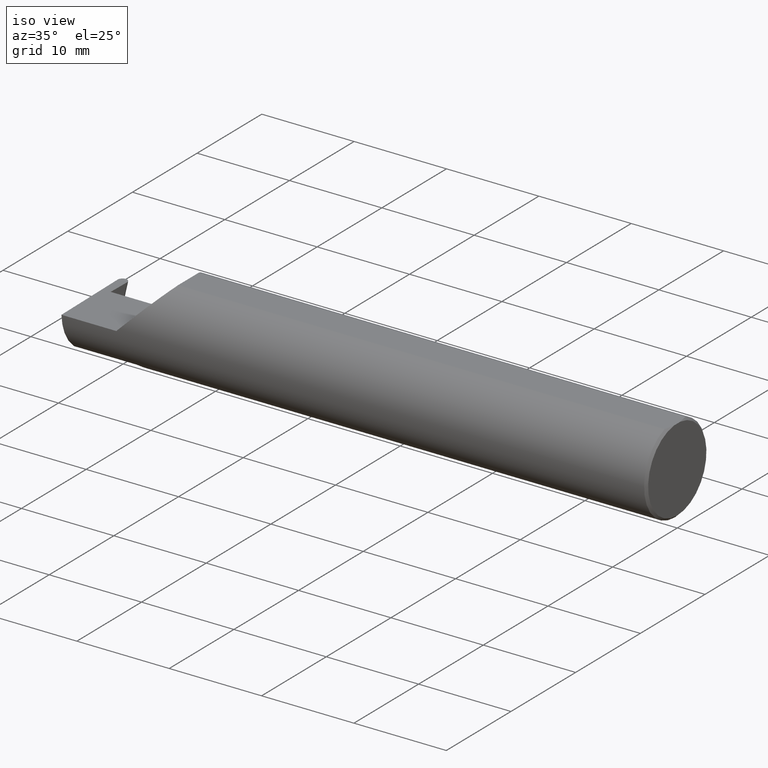
[diagram: clean part render]
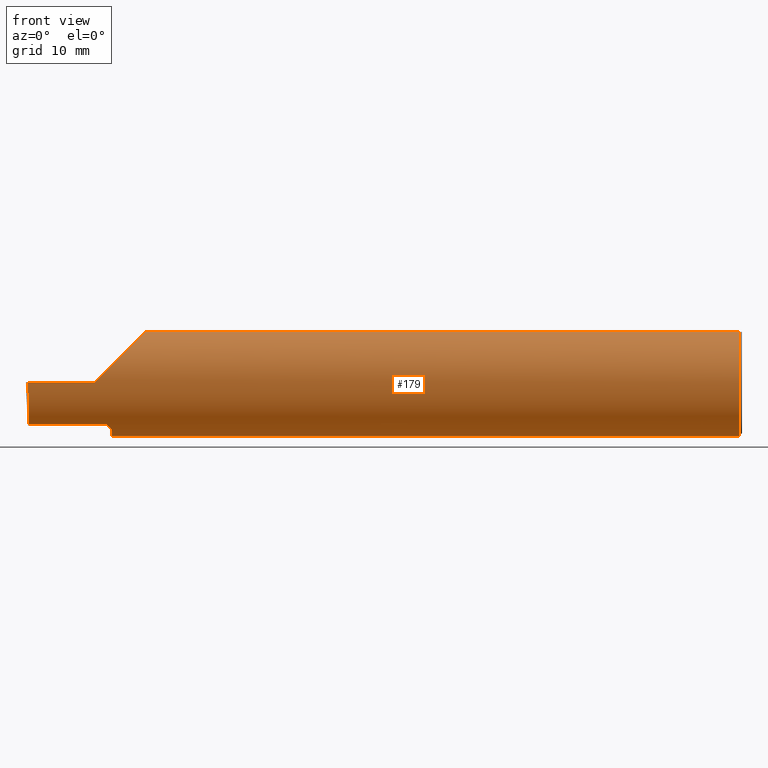
[diagram: tour spotlight — one face highlighted and labeled with its STEP entity id]
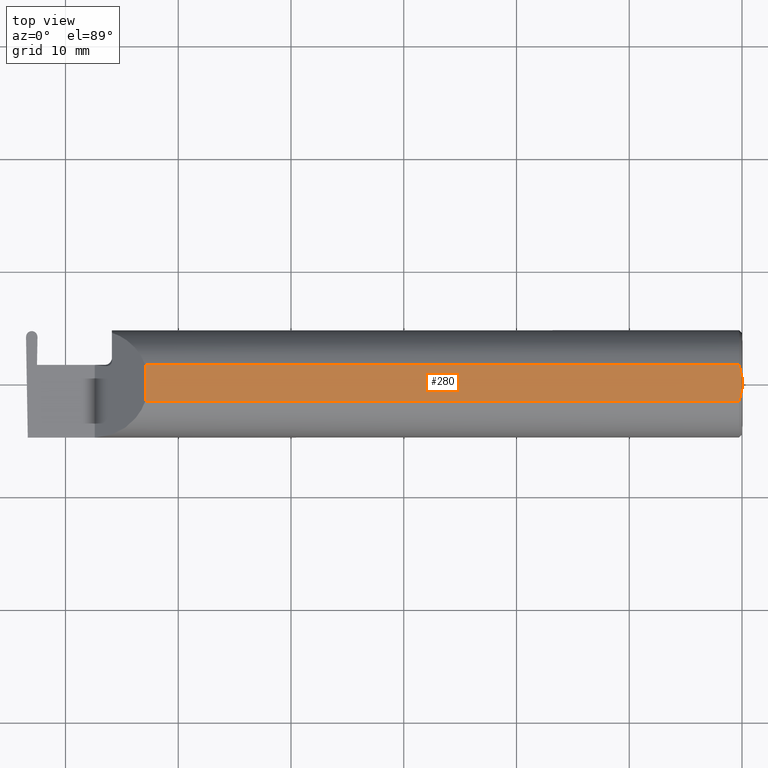
[diagram: tour spotlight — one face highlighted and labeled with its STEP entity id]
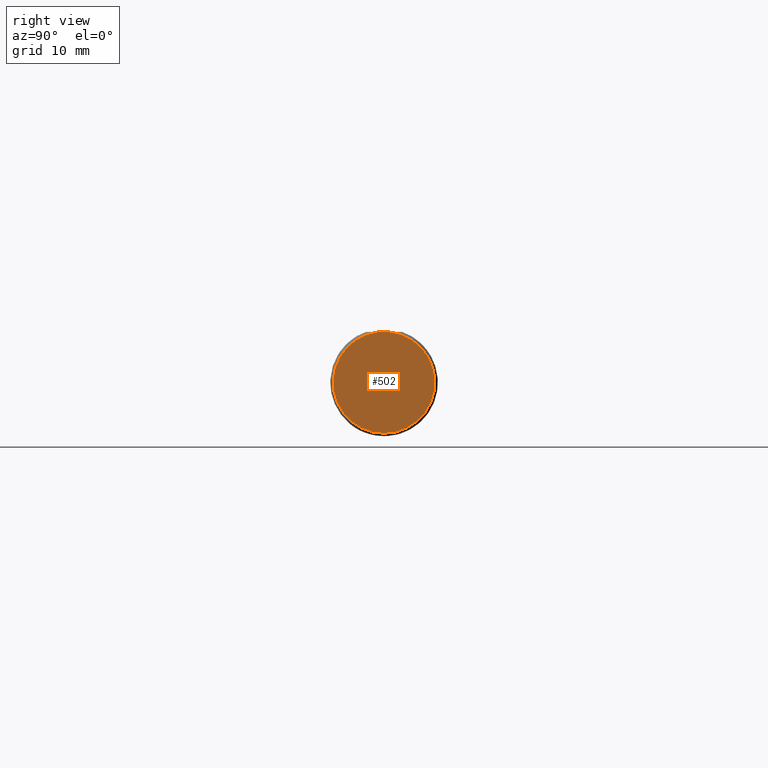
[diagram: tour spotlight — one face highlighted and labeled with its STEP entity id]
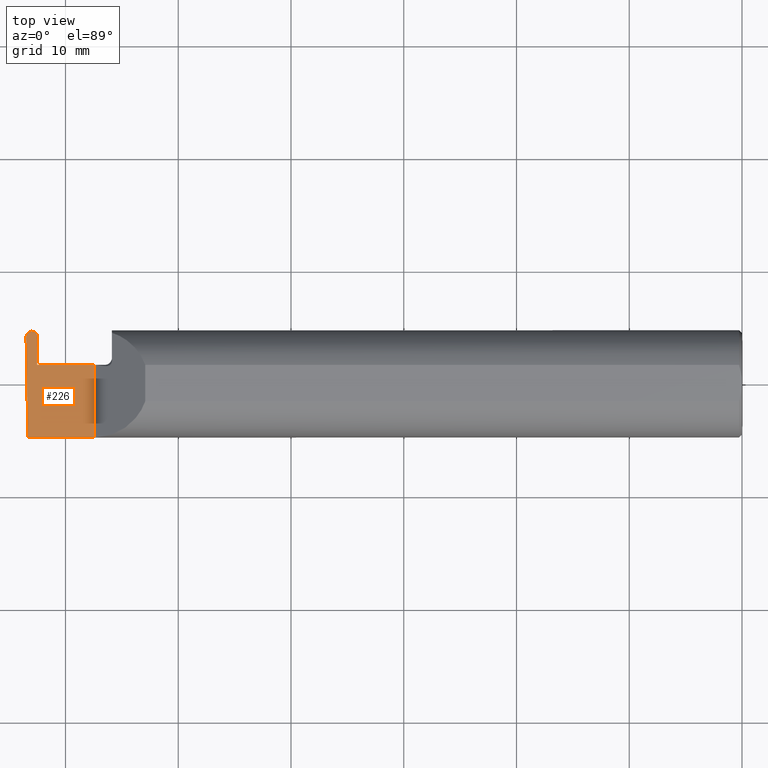
[diagram: tour spotlight — one face highlighted and labeled with its STEP entity id]
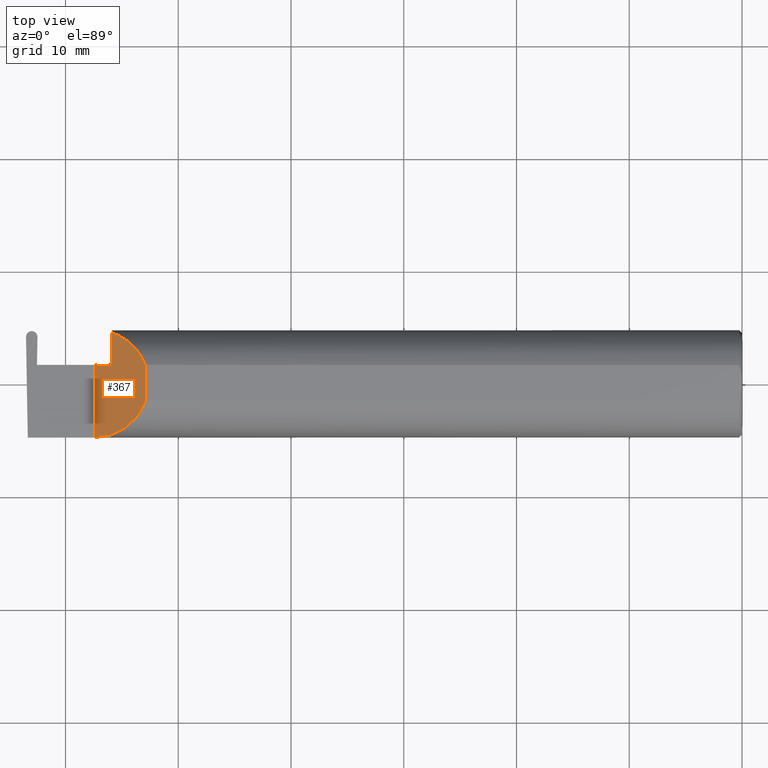
[diagram: tour spotlight — one face highlighted and labeled with its STEP entity id]
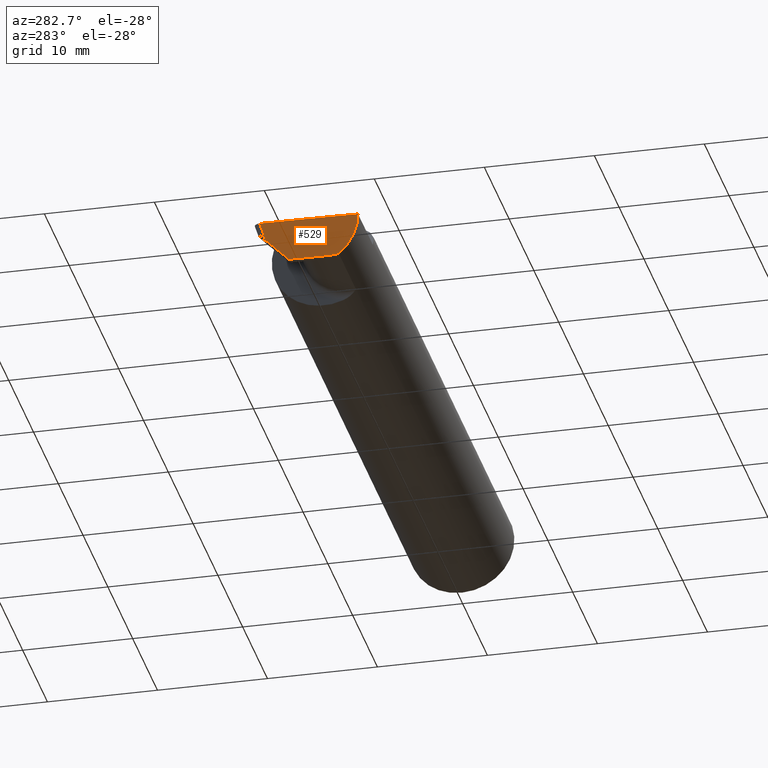
[diagram: tour spotlight — one face highlighted and labeled with its STEP entity id]
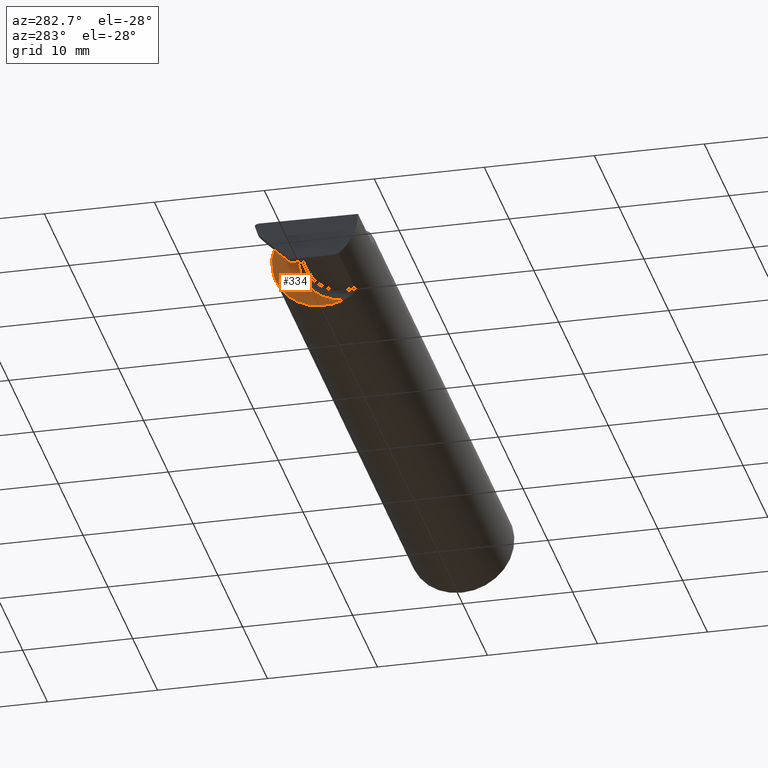
[diagram: tour spotlight — one face highlighted and labeled with its STEP entity id]
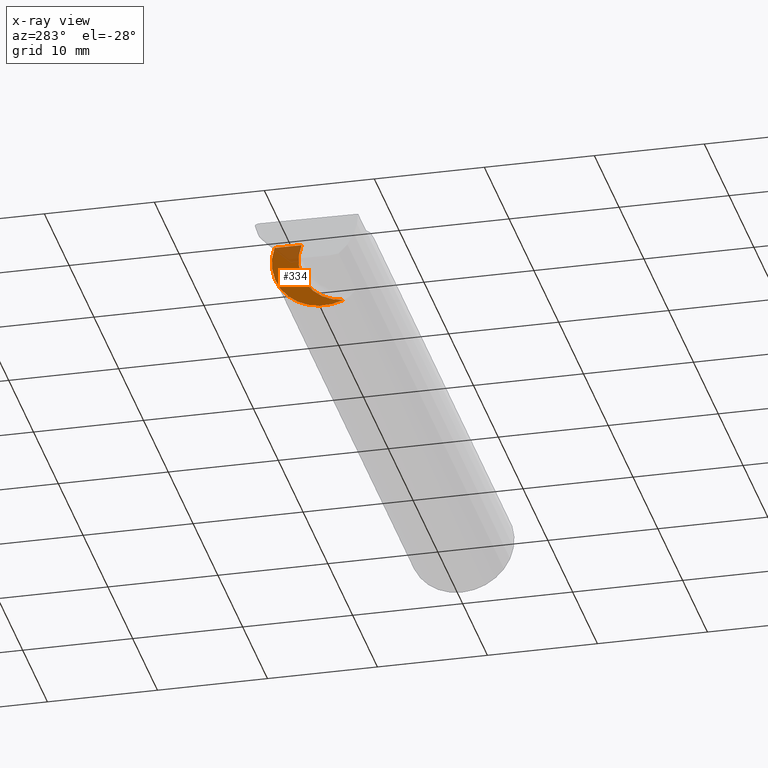
[diagram: x-ray of the same camera — body ghosted, this tour face saturated]
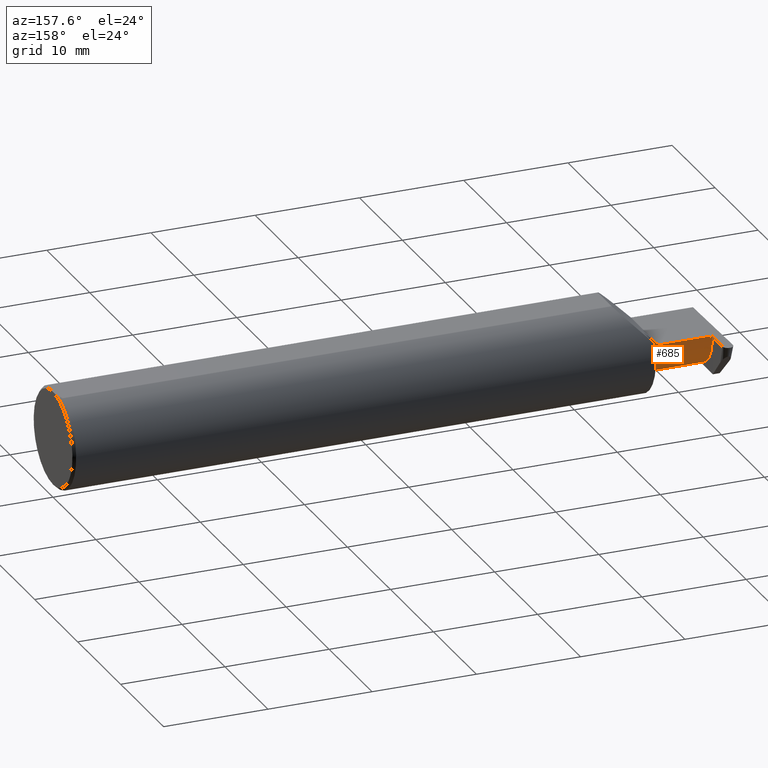
[diagram: tour spotlight — one face highlighted and labeled with its STEP entity id]
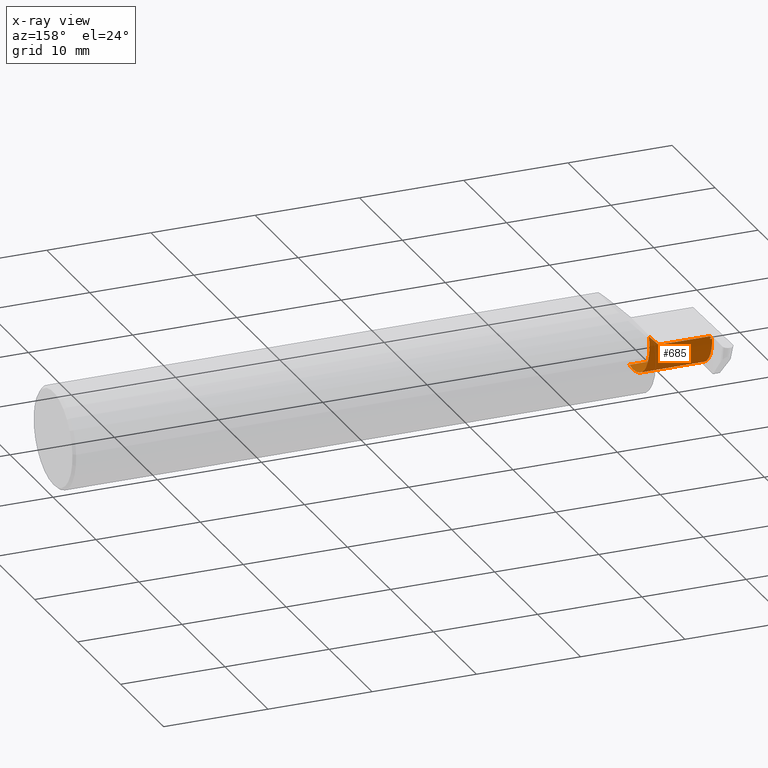
[diagram: x-ray of the same camera — body ghosted, this tour face saturated]
A machine part: a face-by-face anatomy tour. The part has 19 B-rep faces; the first image is the clean iso view, then the 8 largest visible faces are spotlighted one at a time (largest first), each with its STEP entity span.

Face 1 — front view, entity #179. In plain terms, the highlighted cylindrical surface (partial cylindrical patch) has radius 4.7625 mm, axis along (1, -0, -0).
Definition (entity closure, byte-faithful):
#8 = CARTESIAN_POINT ( 'NONE',  ( 0.000000000000000000, -0.06327716807822586498, 0.1764999999999998792 ) ) ;
#12 = CARTESIAN_POINT ( 'NONE',  ( 0.000000000000000000, 0.000000000000000000, 0.000000000000000000 ) ) ;
#16 = VERTEX_POINT ( 'NONE', #329 ) ;
#19 = VECTOR ( 'NONE', #240, 39.37007874015748143 ) ;
#30 = CIRCLE ( 'NONE', #126, 0.1875000000000000278 ) ;
#38 = ORIENTED_EDGE ( 'NONE', *, *, #87, .F. ) ;
#40 = ORIENTED_EDGE ( 'NONE', *, *, #559, .F. ) ;
#41 = EDGE_CURVE ( 'NONE', #16, #632, #493, .T. ) ;
#48 = CARTESIAN_POINT ( 'NONE',  ( -2.200000000000000178, 0.1776407892349053386, 0.05999999999999953981 ) ) ;
#83 = VERTEX_POINT ( 'NONE', #600 ) ;
#84 = LINE ( 'NONE', #675, #535 ) ;
#86 = ORIENTED_EDGE ( 'NONE', *, *, #149, .T. ) ;
#87 = EDGE_CURVE ( 'NONE', #271, #632, #147, .T. ) ;
#102 = VERTEX_POINT ( 'NONE', #655 ) ;
#124 = CARTESIAN_POINT ( 'NONE',  ( -2.200000000000000178, -0.07403853252698160137, -0.1723521670158846830 ) ) ;
#126 = AXIS2_PLACEMENT_3D ( 'NONE', #344, #526, #678 ) ;
#129 = LINE ( 'NONE', #657, #466 ) ;
#134 = CARTESIAN_POINT ( 'NONE',  ( -2.213208340743105129, -0.1123268376040813116, -0.1501472573737382687 ) ) ;
#139 = VECTOR ( 'NONE', #198, 39.37007874015748143 ) ;
#147 =( BOUNDED_CURVE ( )  B_SPLINE_CURVE ( 3, ( #538, #279, #491, #48 ),
 .UNSPECIFIED., .F., .T. ) 
 B_SPLINE_CURVE_WITH_KNOTS ( ( 4, 4 ),
 ( 0.3442366722172838234, 1.245066839500269085 ),
 .UNSPECIFIED. ) 
 CURVE ( )  GEOMETRIC_REPRESENTATION_ITEM ( )  RATIONAL_B_SPLINE_CURVE ( ( 1.000000000000000000, 0.9335109851393532665, 0.9335109851393532665, 1.000000000000000000 ) ) 
 REPRESENTATION_ITEM ( '' )  );
#149 = EDGE_CURVE ( 'NONE', #362, #422, #298, .T. ) ;
#165 = CARTESIAN_POINT ( 'NONE',  ( -2.491841469758325989, -0.1875000000000000555, -0.05777037557894454389 ) ) ;
#177 = CARTESIAN_POINT ( 'NONE',  ( -2.206307565795738501, -0.1025298007101598380, -0.1570730641124816751 ) ) ;
#179 = ADVANCED_FACE ( 'NONE', ( #665 ), #516, .T. ) ;
#193 = EDGE_LOOP ( 'NONE', ( #223, #203, #245, #38, #507, #230, #352, #86, #626, #40, #211 ) ) ;
#198 = DIRECTION ( 'NONE',  ( 1.000000000000000000, -4.597460811137283626E-16, -0.000000000000000000 ) ) ;
#203 = ORIENTED_EDGE ( 'NONE', *, *, #235, .T. ) ;
#211 = ORIENTED_EDGE ( 'NONE', *, *, #475, .F. ) ;
#223 = ORIENTED_EDGE ( 'NONE', *, *, #303, .T. ) ;
#227 = DIRECTION ( 'NONE',  ( 0.000000000000000000, 0.000000000000000000, -1.000000000000000000 ) ) ;
#230 = ORIENTED_EDGE ( 'NONE', *, *, #625, .F. ) ;
#235 = EDGE_CURVE ( 'NONE', #241, #16, #558, .T. ) ;
#240 = DIRECTION ( 'NONE',  ( -1.000000000000000000, 0.000000000000000000, 0.000000000000000000 ) ) ;
#241 = VERTEX_POINT ( 'NONE', #509 ) ;
#245 = ORIENTED_EDGE ( 'NONE', *, *, #41, .T. ) ;
#249 = CARTESIAN_POINT ( 'NONE',  ( -2.083499999999998575, -0.06327716807822589273, 0.1764999999999998792 ) ) ;
#261 = CARTESIAN_POINT ( 'NONE',  ( -2.342483000000000093, -0.1175359281437123732, -0.1460874929465081906 ) ) ;
#267 =( BOUNDED_CURVE ( )  B_SPLINE_CURVE ( 3, ( #585, #693, #638, #249 ),
 .UNSPECIFIED., .F., .F. ) 
 B_SPLINE_CURVE_WITH_KNOTS ( ( 4, 4 ),
 ( 4.712388980384689674, 5.938948634962302187 ),
 .UNSPECIFIED. ) 
 CURVE ( )  GEOMETRIC_REPRESENTATION_ITEM ( )  RATIONAL_B_SPLINE_CURVE ( ( 1.000000000000000000, 0.8785098042021781684, 0.8785098042021781684, 1.000000000000000000 ) ) 
 REPRESENTATION_ITEM ( '' )  );
#271 = VERTEX_POINT ( 'NONE', #572 ) ;
#279 = CARTESIAN_POINT ( 'NONE',  ( -2.103172709306314836, 0.1181505655139686445, 0.1568272906936838129 ) ) ;
#281 = CARTESIAN_POINT ( 'NONE',  ( -2.489978125682272392, -0.1175359281437123038, -0.1460874929465081906 ) ) ;
#287 = CARTESIAN_POINT ( 'NONE',  ( -2.225000000000000089, -0.1175359281437121373, -0.1460874929465083294 ) ) ;
#298 = LINE ( 'NONE', #8, #19 ) ;
#303 = EDGE_CURVE ( 'NONE', #564, #241, #305, .T. ) ;
#305 = LINE ( 'NONE', #261, #139 ) ;
#309 = EDGE_CURVE ( 'NONE', #396, #422, #267, .T. ) ;
#329 = CARTESIAN_POINT ( 'NONE',  ( -2.200000000000000178, -0.06888323353293394902, -0.1743885034572155990 ) ) ;
#339 = DIRECTION ( 'NONE',  ( 0.000000000000000000, 0.000000000000000000, 1.000000000000000000 ) ) ;
#344 = CARTESIAN_POINT ( 'NONE',  ( -0.009999999999999927350, 0.000000000000000000, 0.000000000000000000 ) ) ;
#346 = CARTESIAN_POINT ( 'NONE',  ( -2.200000000000000178, -0.06888323353293394902, -0.1743885034572155990 ) ) ;
#350 = DIRECTION ( 'NONE',  ( 1.000000000000000000, -0.000000000000000000, -0.000000000000000000 ) ) ;
#352 = ORIENTED_EDGE ( 'NONE', *, *, #550, .F. ) ;
#354 = CARTESIAN_POINT ( 'NONE',  ( -2.202962159819173760, -0.09349862836945414812, -0.1626109282809109491 ) ) ;
#362 = VERTEX_POINT ( 'NONE', #410 ) ;
#378 = CARTESIAN_POINT ( 'NONE',  ( -2.260000000000000231, -0.1874999999999999722, 2.939152317953647352E-17 ) ) ;
#396 = VERTEX_POINT ( 'NONE', #378 ) ;
#398 = CARTESIAN_POINT ( 'NONE',  ( -2.201844959670647750, -0.08880246195917441965, -0.1652268154298246750 ) ) ;
#410 = CARTESIAN_POINT ( 'NONE',  ( -0.009999999999999927350, -0.06327716807822586498, 0.1764999999999998792 ) ) ;
#417 = DIRECTION ( 'NONE',  ( 1.000000000000000000, -0.000000000000000000, -0.000000000000000000 ) ) ;
#422 = VERTEX_POINT ( 'NONE', #430 ) ;
#428 = CARTESIAN_POINT ( 'NONE',  ( -2.200000000000000178, 0.000000000000000000, 0.000000000000000000 ) ) ;
#430 = CARTESIAN_POINT ( 'NONE',  ( -2.083499999999998575, -0.06327716807822589273, 0.1764999999999998792 ) ) ;
#439 = DIRECTION ( 'NONE',  ( 1.000000000000000000, -4.597460811137283626E-16, -0.000000000000000000 ) ) ;
#444 = AXIS2_PLACEMENT_3D ( 'NONE', #12, #673, #339 ) ;
#461 = CARTESIAN_POINT ( 'NONE',  ( -2.200000000000000178, 0.1776407892349053386, 0.05999999999999953981 ) ) ;
#466 = VECTOR ( 'NONE', #350, 39.37007874015748143 ) ;
#475 = EDGE_CURVE ( 'NONE', #564, #614, #681, .T. ) ;
#480 = AXIS2_PLACEMENT_3D ( 'NONE', #428, #439, #703 ) ;
#491 = CARTESIAN_POINT ( 'NONE',  ( -2.144771934116226131, 0.1589869430811119699, 0.1152280658837728650 ) ) ;
#492 = CIRCLE ( 'NONE', #557, 0.1875000000000000278 ) ;
#493 = CIRCLE ( 'NONE', #480, 0.1875000000000000278 ) ;
#497 = CARTESIAN_POINT ( 'NONE',  ( -2.493859163031828974, -0.1875000000000000278, 0.000000000000000000 ) ) ;
#500 = CARTESIAN_POINT ( 'NONE',  ( -2.215033422357157278, -0.1140100553416306117, -0.1488648871250152494 ) ) ;
#506 = CARTESIAN_POINT ( 'NONE',  ( -2.208443688342419886, -0.1067636087439604448, -0.1542039273816445122 ) ) ;
#507 = ORIENTED_EDGE ( 'NONE', *, *, #664, .T. ) ;
#509 = CARTESIAN_POINT ( 'NONE',  ( -2.225000000000000089, -0.1175359281437121373, -0.1460874929465083294 ) ) ;
#516 = CYLINDRICAL_SURFACE ( 'NONE', #444, 0.1875000000000000278 ) ;
#526 = DIRECTION ( 'NONE',  ( 1.000000000000000000, -0.000000000000000000, -0.000000000000000000 ) ) ;
#535 = VECTOR ( 'NONE', #417, 39.37007874015748143 ) ;
#538 = CARTESIAN_POINT ( 'NONE',  ( -2.083499999999998575, 0.06327716807822589273, 0.1764999999999998792 ) ) ;
#550 = EDGE_CURVE ( 'NONE', #362, #102, #492, .T. ) ;
#553 = CARTESIAN_POINT ( 'NONE',  ( -2.219515287719885155, -0.1166474904886817682, -0.1468073918453634830 ) ) ;
#557 = AXIS2_PLACEMENT_3D ( 'NONE', #608, #560, #227 ) ;
#558 = B_SPLINE_CURVE_WITH_KNOTS ( 'NONE', 3,
 ( #287, #621, #553, #500, #134, #506, #177, #354, #398, #612, #124, #346 ),
 .UNSPECIFIED., .F., .F.,
 ( 4, 2, 2, 2, 2, 4 ),
 ( 1.967982778148954439E-07, 0.0002118755924537061978, 0.0004235543866295975093, 0.0008469119749813932511, 0.001270269563333188993, 0.001693627151684984952 ),
 .UNSPECIFIED. ) ;
#559 = EDGE_CURVE ( 'NONE', #614, #396, #129, .T. ) ;
#560 = DIRECTION ( 'NONE',  ( 1.000000000000000000, -0.000000000000000000, -0.000000000000000000 ) ) ;
#564 = VERTEX_POINT ( 'NONE', #620 ) ;
#572 = CARTESIAN_POINT ( 'NONE',  ( -2.083499999999998575, 0.06327716807822589273, 0.1764999999999998792 ) ) ;
#585 = CARTESIAN_POINT ( 'NONE',  ( -2.260000000000000231, -0.1874999999999999722, 2.939152317953647352E-17 ) ) ;
#599 = CARTESIAN_POINT ( 'NONE',  ( -2.490457266584171769, -0.1625467512632120526, -0.1098736544778037005 ) ) ;
#600 = CARTESIAN_POINT ( 'NONE',  ( -0.009999999999999927350, 0.06327716807822586498, 0.1764999999999998792 ) ) ;
#608 = CARTESIAN_POINT ( 'NONE',  ( -0.009999999999999927350, 0.000000000000000000, 0.000000000000000000 ) ) ;
#611 = CARTESIAN_POINT ( 'NONE',  ( -2.493859163031828974, -0.1875000000000000278, 0.000000000000000000 ) ) ;
#612 = CARTESIAN_POINT ( 'NONE',  ( -2.200358515504157619, -0.07908455882945493454, -0.1700923582699778169 ) ) ;
#614 = VERTEX_POINT ( 'NONE', #611 ) ;
#620 = CARTESIAN_POINT ( 'NONE',  ( -2.489978125682272392, -0.1175359281437123038, -0.1460874929465081906 ) ) ;
#621 = CARTESIAN_POINT ( 'NONE',  ( -2.222177053927599122, -0.1175359281437122622, -0.1460874929465083294 ) ) ;
#625 = EDGE_CURVE ( 'NONE', #102, #83, #30, .T. ) ;
#626 = ORIENTED_EDGE ( 'NONE', *, *, #309, .F. ) ;
#632 = VERTEX_POINT ( 'NONE', #461 ) ;
#638 = CARTESIAN_POINT ( 'NONE',  ( -2.111137212749681247, -0.1403660802161499355, 0.1488627872503170968 ) ) ;
#655 = CARTESIAN_POINT ( 'NONE',  ( -0.009999999999999927350, 0.000000000000000000, -0.1875000000000000278 ) ) ;
#657 = CARTESIAN_POINT ( 'NONE',  ( -3.749399456654646757E-32, -0.1874999999999999722, 3.061616997868383634E-16 ) ) ;
#664 = EDGE_CURVE ( 'NONE', #271, #83, #84, .T. ) ;
#665 = FACE_OUTER_BOUND ( 'NONE', #193, .T. ) ;
#673 = DIRECTION ( 'NONE',  ( 1.000000000000000000, -0.000000000000000000, -0.000000000000000000 ) ) ;
#675 = CARTESIAN_POINT ( 'NONE',  ( 0.000000000000000000, 0.06327716807822586498, 0.1764999999999998792 ) ) ;
#678 = DIRECTION ( 'NONE',  ( 0.000000000000000000, 0.000000000000000000, -1.000000000000000000 ) ) ;
#681 =( BOUNDED_CURVE ( )  B_SPLINE_CURVE ( 3, ( #281, #599, #165, #497 ),
 .UNSPECIFIED., .F., .T. ) 
 B_SPLINE_CURVE_WITH_KNOTS ( ( 4, 4 ),
 ( 0.2140494988296818002, 1.107331509589550400 ),
 .UNSPECIFIED. ) 
 CURVE ( )  GEOMETRIC_REPRESENTATION_ITEM ( )  RATIONAL_B_SPLINE_CURVE ( ( 1.000000000000000000, 0.9346020444643388103, 0.9346020444643388103, 1.000000000000000000 ) ) 
 REPRESENTATION_ITEM ( '' )  );
#693 = CARTESIAN_POINT ( 'NONE',  ( -2.178106679740165141, -0.1875000000000000555, 0.08189332025983427077 ) ) ;
#703 = DIRECTION ( 'NONE',  ( 0.000000000000000000, 1.000000000000000000, 0.000000000000000000 ) ) ;

Face 2 — top view, entity #280. In plain terms, the highlighted planar face has unit normal (0, 0, 1).
Definition (entity closure, byte-faithful):
#5 = ORIENTED_EDGE ( 'NONE', *, *, #510, .F. ) ;
#6 = EDGE_CURVE ( 'NONE', #422, #271, #44, .T. ) ;
#8 = CARTESIAN_POINT ( 'NONE',  ( 0.000000000000000000, -0.06327716807822586498, 0.1764999999999998792 ) ) ;
#19 = VECTOR ( 'NONE', #240, 39.37007874015748143 ) ;
#23 = ORIENTED_EDGE ( 'NONE', *, *, #6, .F. ) ;
#44 = LINE ( 'NONE', #50, #252 ) ;
#50 = CARTESIAN_POINT ( 'NONE',  ( -2.083499999999998575, -0.2500000000000000555, 0.1764999999999998792 ) ) ;
#57 = AXIS2_PLACEMENT_3D ( 'NONE', #580, #361, #302 ) ;
#76 = CARTESIAN_POINT ( 'NONE',  ( -0.009999999999999927350, 0.06327716807822586498, 0.1764999999999998792 ) ) ;
#82 = PLANE ( 'NONE',  #57 ) ;
#83 = VERTEX_POINT ( 'NONE', #600 ) ;
#84 = LINE ( 'NONE', #675, #535 ) ;
#108 = DIRECTION ( 'NONE',  ( 0.000000000000000000, 1.000000000000000000, 0.000000000000000000 ) ) ;
#132 = EDGE_CURVE ( 'NONE', #259, #83, #306, .T. ) ;
#142 = ORIENTED_EDGE ( 'NONE', *, *, #132, .T. ) ;
#149 = EDGE_CURVE ( 'NONE', #362, #422, #298, .T. ) ;
#173 = DIRECTION ( 'NONE',  ( 1.342342146396802078E-16, -1.000000000000000000, 0.000000000000000000 ) ) ;
#189 = CARTESIAN_POINT ( 'NONE',  ( -0.005155089261394574240, 0.04892095096109028152, 0.1764999999999998792 ) ) ;
#194 = VECTOR ( 'NONE', #173, 39.37007874015748143 ) ;
#196 = VERTEX_POINT ( 'NONE', #513 ) ;
#210 = CARTESIAN_POINT ( 'NONE',  ( 0.000000000000000000, -0.01881488772222998998, 0.1764999999999998792 ) ) ;
#216 = CARTESIAN_POINT ( 'NONE',  ( -0.005150925715430529697, -0.04890861373279827701, 0.1764999999999998792 ) ) ;
#240 = DIRECTION ( 'NONE',  ( -1.000000000000000000, 0.000000000000000000, 0.000000000000000000 ) ) ;
#252 = VECTOR ( 'NONE', #108, 39.37007874015748143 ) ;
#259 = VERTEX_POINT ( 'NONE', #319 ) ;
#271 = VERTEX_POINT ( 'NONE', #572 ) ;
#280 = ADVANCED_FACE ( 'NONE', ( #530 ), #82, .T. ) ;
#283 = CARTESIAN_POINT ( 'NONE',  ( 0.000000000000000000, 0.4266143610135497144, 0.1764999999999998792 ) ) ;
#298 = LINE ( 'NONE', #8, #19 ) ;
#302 = DIRECTION ( 'NONE',  ( 1.000000000000000000, 0.000000000000000000, -0.000000000000000000 ) ) ;
#306 = B_SPLINE_CURVE_WITH_KNOTS ( 'NONE', 3,
 ( #395, #676, #189, #76 ),
 .UNSPECIFIED., .F., .F.,
 ( 4, 4 ),
 ( 0.01189576907519420725, 0.01305603055478470054 ),
 .UNSPECIFIED. ) ;
#319 = CARTESIAN_POINT ( 'NONE',  ( 5.474064202773561685E-17, 0.01881488772222947303, 0.1764999999999998792 ) ) ;
#343 = EDGE_LOOP ( 'NONE', ( #5, #142, #433, #23, #592, #636 ) ) ;
#361 = DIRECTION ( 'NONE',  ( 0.000000000000000000, 0.000000000000000000, 1.000000000000000000 ) ) ;
#362 = VERTEX_POINT ( 'NONE', #410 ) ;
#385 = CARTESIAN_POINT ( 'NONE',  ( -0.001595498658593683160, -0.03386685168190704809, 0.1764999999999998792 ) ) ;
#395 = CARTESIAN_POINT ( 'NONE',  ( 5.474064202773561685E-17, 0.01881488772222947303, 0.1764999999999998792 ) ) ;
#410 = CARTESIAN_POINT ( 'NONE',  ( -0.009999999999999927350, -0.06327716807822586498, 0.1764999999999998792 ) ) ;
#417 = DIRECTION ( 'NONE',  ( 1.000000000000000000, -0.000000000000000000, -0.000000000000000000 ) ) ;
#422 = VERTEX_POINT ( 'NONE', #430 ) ;
#430 = CARTESIAN_POINT ( 'NONE',  ( -2.083499999999998575, -0.06327716807822589273, 0.1764999999999998792 ) ) ;
#433 = ORIENTED_EDGE ( 'NONE', *, *, #664, .F. ) ;
#455 = EDGE_CURVE ( 'NONE', #362, #196, #668, .T. ) ;
#490 = CARTESIAN_POINT ( 'NONE',  ( -0.009999999999999927350, -0.06327716807822586498, 0.1764999999999998792 ) ) ;
#510 = EDGE_CURVE ( 'NONE', #259, #196, #667, .T. ) ;
#513 = CARTESIAN_POINT ( 'NONE',  ( 0.000000000000000000, -0.01881488772222998998, 0.1764999999999998792 ) ) ;
#530 = FACE_OUTER_BOUND ( 'NONE', #343, .T. ) ;
#535 = VECTOR ( 'NONE', #417, 39.37007874015748143 ) ;
#572 = CARTESIAN_POINT ( 'NONE',  ( -2.083499999999998575, 0.06327716807822589273, 0.1764999999999998792 ) ) ;
#580 = CARTESIAN_POINT ( 'NONE',  ( 2.877127299462661547, 0.1874999999999999722, 0.1764999999999998792 ) ) ;
#592 = ORIENTED_EDGE ( 'NONE', *, *, #149, .F. ) ;
#600 = CARTESIAN_POINT ( 'NONE',  ( -0.009999999999999927350, 0.06327716807822586498, 0.1764999999999998792 ) ) ;
#636 = ORIENTED_EDGE ( 'NONE', *, *, #455, .T. ) ;
#664 = EDGE_CURVE ( 'NONE', #271, #83, #84, .T. ) ;
#667 = LINE ( 'NONE', #283, #194 ) ;
#668 = B_SPLINE_CURVE_WITH_KNOTS ( 'NONE', 3,
 ( #490, #216, #385, #210 ),
 .UNSPECIFIED., .F., .F.,
 ( 4, 4 ),
 ( 0.009779715696590744745, 0.01093659320511082729 ),
 .UNSPECIFIED. ) ;
#675 = CARTESIAN_POINT ( 'NONE',  ( 0.000000000000000000, 0.06327716807822586498, 0.1764999999999998792 ) ) ;
#676 = CARTESIAN_POINT ( 'NONE',  ( -0.001616549010914873283, 0.03406544109642702794, 0.1764999999999998792 ) ) ;

Face 3 — right view, entity #502. In plain terms, the highlighted planar face has unit normal (-1, -0, 0).
Definition (entity closure, byte-faithful):
#3 = DIRECTION ( 'NONE',  ( 1.342342146396802078E-16, -1.000000000000000000, 0.000000000000000000 ) ) ;
#32 = CARTESIAN_POINT ( 'NONE',  ( 0.000000000000000000, 0.000000000000000000, 0.000000000000000000 ) ) ;
#94 = DIRECTION ( 'NONE',  ( -1.000000000000000000, 0.000000000000000000, 0.000000000000000000 ) ) ;
#107 = FACE_OUTER_BOUND ( 'NONE', #416, .T. ) ;
#156 = ORIENTED_EDGE ( 'NONE', *, *, #300, .F. ) ;
#173 = DIRECTION ( 'NONE',  ( 1.342342146396802078E-16, -1.000000000000000000, 0.000000000000000000 ) ) ;
#175 = VERTEX_POINT ( 'NONE', #555 ) ;
#194 = VECTOR ( 'NONE', #173, 39.37007874015748143 ) ;
#196 = VERTEX_POINT ( 'NONE', #513 ) ;
#228 = CIRCLE ( 'NONE', #400, 0.1775000000000002132 ) ;
#231 = DIRECTION ( 'NONE',  ( -1.000000000000000000, -1.342342146396802078E-16, 0.000000000000000000 ) ) ;
#254 = DIRECTION ( 'NONE',  ( 0.000000000000000000, 0.000000000000000000, -1.000000000000000000 ) ) ;
#259 = VERTEX_POINT ( 'NONE', #319 ) ;
#283 = CARTESIAN_POINT ( 'NONE',  ( 0.000000000000000000, 0.4266143610135497144, 0.1764999999999998792 ) ) ;
#300 = EDGE_CURVE ( 'NONE', #259, #175, #692, .T. ) ;
#304 = ORIENTED_EDGE ( 'NONE', *, *, #408, .F. ) ;
#319 = CARTESIAN_POINT ( 'NONE',  ( 5.474064202773561685E-17, 0.01881488772222947303, 0.1764999999999998792 ) ) ;
#328 = PLANE ( 'NONE',  #503 ) ;
#400 = AXIS2_PLACEMENT_3D ( 'NONE', #702, #649, #699 ) ;
#408 = EDGE_CURVE ( 'NONE', #175, #196, #228, .T. ) ;
#416 = EDGE_LOOP ( 'NONE', ( #156, #571, #304 ) ) ;
#502 = ADVANCED_FACE ( 'NONE', ( #107 ), #328, .F. ) ;
#503 = AXIS2_PLACEMENT_3D ( 'NONE', #704, #231, #3 ) ;
#510 = EDGE_CURVE ( 'NONE', #259, #196, #667, .T. ) ;
#513 = CARTESIAN_POINT ( 'NONE',  ( 0.000000000000000000, -0.01881488772222998998, 0.1764999999999998792 ) ) ;
#555 = CARTESIAN_POINT ( 'NONE',  ( 0.000000000000000000, 0.000000000000000000, -0.1775000000000002132 ) ) ;
#571 = ORIENTED_EDGE ( 'NONE', *, *, #510, .T. ) ;
#649 = DIRECTION ( 'NONE',  ( -1.000000000000000000, 0.000000000000000000, 0.000000000000000000 ) ) ;
#659 = AXIS2_PLACEMENT_3D ( 'NONE', #32, #94, #254 ) ;
#667 = LINE ( 'NONE', #283, #194 ) ;
#692 = CIRCLE ( 'NONE', #659, 0.1775000000000002132 ) ;
#699 = DIRECTION ( 'NONE',  ( 0.000000000000000000, 0.000000000000000000, -1.000000000000000000 ) ) ;
#702 = CARTESIAN_POINT ( 'NONE',  ( 0.000000000000000000, 0.000000000000000000, 0.000000000000000000 ) ) ;
#704 = CARTESIAN_POINT ( 'NONE',  ( 0.000000000000000000, 0.4266143610135497144, -0.1875000000000000278 ) ) ;

Face 4 — top view, entity #226. In plain terms, the highlighted planar face has unit normal (0, 0, -1).
Definition (entity closure, byte-faithful):
#2 = DIRECTION ( 'NONE',  ( 0.000000000000000000, 1.000000000000000000, 0.000000000000000000 ) ) ;
#9 = ORIENTED_EDGE ( 'NONE', *, *, #355, .T. ) ;
#17 = EDGE_CURVE ( 'NONE', #396, #670, #700, .T. ) ;
#47 =( BOUNDED_CURVE ( )  B_SPLINE_CURVE ( 3, ( #297, #117, #290, #551 ),
 .UNSPECIFIED., .F., .F. ) 
 B_SPLINE_CURVE_WITH_KNOTS ( ( 4, 4 ),
 ( 1.683182027770899536, 3.259781963246014325 ),
 .UNSPECIFIED. ) 
 CURVE ( )  GEOMETRIC_REPRESENTATION_ITEM ( )  RATIONAL_B_SPLINE_CURVE ( ( 1.000000000000000000, 0.8033679476376960338, 0.8033679476376960338, 1.000000000000000000 ) ) 
 REPRESENTATION_ITEM ( '' )  );
#54 = CARTESIAN_POINT ( 'NONE',  ( -2.479744952083222209, 0.1844999999999999696, 0.000000000000000000 ) ) ;
#63 = FACE_OUTER_BOUND ( 'NONE', #386, .T. ) ;
#65 = VERTEX_POINT ( 'NONE', #548 ) ;
#71 = DIRECTION ( 'NONE',  ( 1.000000000000000000, 0.000000000000000000, 1.224646799147353947E-16 ) ) ;
#73 = VERTEX_POINT ( 'NONE', #322 ) ;
#113 = CARTESIAN_POINT ( 'NONE',  ( -2.459982749943019797, 0.1633487106945233358, 0.000000000000000000 ) ) ;
#117 = CARTESIAN_POINT ( 'NONE',  ( -2.500199259956601860, 0.1757239095557345532, -2.477352571440049085E-18 ) ) ;
#123 = CARTESIAN_POINT ( 'NONE',  ( -2.454613552814876698, 0.06649999999999985090, 0.000000000000000000 ) ) ;
#128 = VECTOR ( 'NONE', #452, 39.37007874015748143 ) ;
#129 = LINE ( 'NONE', #657, #466 ) ;
#130 = PLANE ( 'NONE',  #525 ) ;
#154 = ORIENTED_EDGE ( 'NONE', *, *, #394, .T. ) ;
#159 = VECTOR ( 'NONE', #2, 39.37007874015748143 ) ;
#174 = DIRECTION ( 'NONE',  ( 1.224646799147353947E-16, 0.000000000000000000, -1.000000000000000000 ) ) ;
#178 = ORIENTED_EDGE ( 'NONE', *, *, #651, .T. ) ;
#182 = VECTOR ( 'NONE', #364, 39.37007874015748143 ) ;
#192 = CARTESIAN_POINT ( 'NONE',  ( -2.480221047916777000, 0.1844999999999999696, 0.000000000000000000 ) ) ;
#201 = LINE ( 'NONE', #469, #182 ) ;
#209 = EDGE_CURVE ( 'NONE', #670, #619, #236, .T. ) ;
#225 = ORIENTED_EDGE ( 'NONE', *, *, #528, .F. ) ;
#226 = ADVANCED_FACE ( 'NONE', ( #63 ), #130, .F. ) ;
#236 = LINE ( 'NONE', #567, #128 ) ;
#250 = VERTEX_POINT ( 'NONE', #192 ) ;
#258 = LINE ( 'NONE', #473, #534 ) ;
#290 = CARTESIAN_POINT ( 'NONE',  ( -2.491999529393824186, 0.1844999999999999141, -1.473175192682375366E-18 ) ) ;
#297 = CARTESIAN_POINT ( 'NONE',  ( -2.499983250056980744, 0.1633487106945232803, 0.000000000000000000 ) ) ;
#310 = CARTESIAN_POINT ( 'NONE',  ( -2.479744952083222209, 0.1844999999999999696, 0.000000000000000000 ) ) ;
#321 = CARTESIAN_POINT ( 'NONE',  ( -2.459969048686054816, 0.1641336551803448951, 0.000000000000000000 ) ) ;
#322 = CARTESIAN_POINT ( 'NONE',  ( -2.459982749943019797, 0.1633487106945233358, 0.000000000000000000 ) ) ;
#335 = DIRECTION ( 'NONE',  ( 0.01745240643727649296, 0.9998476951563912696, 0.000000000000000000 ) ) ;
#350 = DIRECTION ( 'NONE',  ( 1.000000000000000000, -0.000000000000000000, -0.000000000000000000 ) ) ;
#351 = CARTESIAN_POINT ( 'NONE',  ( -2.500000000000000000, -0.2500000000000000555, 0.000000000000000000 ) ) ;
#353 = CARTESIAN_POINT ( 'NONE',  ( -2.461673250476406061, 0.06649999999999985090, 0.000000000000000000 ) ) ;
#355 = EDGE_CURVE ( 'NONE', #65, #614, #258, .T. ) ;
#364 = DIRECTION ( 'NONE',  ( -1.000000000000000000, 0.000000000000000000, 0.000000000000000000 ) ) ;
#366 = ORIENTED_EDGE ( 'NONE', *, *, #697, .T. ) ;
#377 = EDGE_CURVE ( 'NONE', #483, #73, #633, .T. ) ;
#378 = CARTESIAN_POINT ( 'NONE',  ( -2.260000000000000231, -0.1874999999999999722, 2.939152317953647352E-17 ) ) ;
#380 = VECTOR ( 'NONE', #335, 39.37007874015748143 ) ;
#381 = VECTOR ( 'NONE', #420, 39.37007874015748143 ) ;
#386 = EDGE_LOOP ( 'NONE', ( #366, #225, #9, #630, #474, #419, #178, #154, #582 ) ) ;
#394 = EDGE_CURVE ( 'NONE', #556, #73, #643, .T. ) ;
#396 = VERTEX_POINT ( 'NONE', #378 ) ;
#419 = ORIENTED_EDGE ( 'NONE', *, *, #209, .T. ) ;
#420 = DIRECTION ( 'NONE',  ( -1.000000000000000000, 0.000000000000000000, 0.000000000000000000 ) ) ;
#452 = DIRECTION ( 'NONE',  ( -1.000000000000000000, 4.597460811137283626E-16, 0.000000000000000000 ) ) ;
#466 = VECTOR ( 'NONE', #350, 39.37007874015748143 ) ;
#469 = CARTESIAN_POINT ( 'NONE',  ( -2.461673250476406061, 0.06649999999999985090, 0.000000000000000000 ) ) ;
#473 = CARTESIAN_POINT ( 'NONE',  ( -2.499996951313945726, 0.1641336551803448951, 0.000000000000000000 ) ) ;
#474 = ORIENTED_EDGE ( 'NONE', *, *, #17, .T. ) ;
#477 = DIRECTION ( 'NONE',  ( 0.01745240643727691970, -0.9998476951563912696, 0.000000000000000000 ) ) ;
#483 = VERTEX_POINT ( 'NONE', #54 ) ;
#515 = LINE ( 'NONE', #682, #381 ) ;
#523 = CARTESIAN_POINT ( 'NONE',  ( -2.467966470606175466, 0.1844999999999998308, 1.473175192682372862E-18 ) ) ;
#525 = AXIS2_PLACEMENT_3D ( 'NONE', #351, #174, #71 ) ;
#528 = EDGE_CURVE ( 'NONE', #65, #250, #47, .T. ) ;
#534 = VECTOR ( 'NONE', #477, 39.37007874015748143 ) ;
#542 = CARTESIAN_POINT ( 'NONE',  ( -2.260000000000000231, -0.2500000000000000555, 2.939152317953647352E-17 ) ) ;
#548 = CARTESIAN_POINT ( 'NONE',  ( -2.499983250056980744, 0.1633487106945232803, 0.000000000000000000 ) ) ;
#551 = CARTESIAN_POINT ( 'NONE',  ( -2.480221047916777000, 0.1844999999999999696, 0.000000000000000000 ) ) ;
#556 = VERTEX_POINT ( 'NONE', #353 ) ;
#559 = EDGE_CURVE ( 'NONE', #614, #396, #129, .T. ) ;
#567 = CARTESIAN_POINT ( 'NONE',  ( -2.200000000000000178, 0.06649999999999994804, 3.673940397442061963E-17 ) ) ;
#582 = ORIENTED_EDGE ( 'NONE', *, *, #377, .F. ) ;
#611 = CARTESIAN_POINT ( 'NONE',  ( -2.493859163031828974, -0.1875000000000000278, 0.000000000000000000 ) ) ;
#614 = VERTEX_POINT ( 'NONE', #611 ) ;
#619 = VERTEX_POINT ( 'NONE', #123 ) ;
#628 = CARTESIAN_POINT ( 'NONE',  ( -2.260000000000000231, 0.06649999999999985090, 2.939152317953647352E-17 ) ) ;
#630 = ORIENTED_EDGE ( 'NONE', *, *, #559, .T. ) ;
#633 =( BOUNDED_CURVE ( )  B_SPLINE_CURVE ( 3, ( #310, #523, #686, #113 ),
 .UNSPECIFIED., .F., .F. ) 
 B_SPLINE_CURVE_WITH_KNOTS ( ( 4, 4 ),
 ( 6.164995997523364579, 7.741595932998477814 ),
 .UNSPECIFIED. ) 
 CURVE ( )  GEOMETRIC_REPRESENTATION_ITEM ( )  RATIONAL_B_SPLINE_CURVE ( ( 1.000000000000000000, 0.8033679476376962558, 0.8033679476376962558, 1.000000000000000000 ) ) 
 REPRESENTATION_ITEM ( '' )  );
#643 = LINE ( 'NONE', #321, #380 ) ;
#651 = EDGE_CURVE ( 'NONE', #619, #556, #201, .T. ) ;
#657 = CARTESIAN_POINT ( 'NONE',  ( -3.749399456654646757E-32, -0.1874999999999999722, 3.061616997868383634E-16 ) ) ;
#670 = VERTEX_POINT ( 'NONE', #628 ) ;
#682 = CARTESIAN_POINT ( 'NONE',  ( 0.001039370078740541395, 0.1844999999999999696, 0.000000000000000000 ) ) ;
#686 = CARTESIAN_POINT ( 'NONE',  ( -2.459766740043397348, 0.1757239095557345809, 2.477352571440046774E-18 ) ) ;
#697 = EDGE_CURVE ( 'NONE', #483, #250, #515, .T. ) ;
#700 = LINE ( 'NONE', #542, #159 ) ;

Face 5 — top view, entity #367. In plain terms, the highlighted planar face has unit normal (0.7071, 0, -0.7071).
Definition (entity closure, byte-faithful):
#1 = CARTESIAN_POINT ( 'NONE',  ( -2.225000000000000089, 0.06235952145814824960, 0.03500000000000001721 ) ) ;
#2 = DIRECTION ( 'NONE',  ( 0.000000000000000000, 1.000000000000000000, 0.000000000000000000 ) ) ;
#6 = EDGE_CURVE ( 'NONE', #422, #271, #44, .T. ) ;
#13 = VERTEX_POINT ( 'NONE', #498 ) ;
#17 = EDGE_CURVE ( 'NONE', #396, #670, #700, .T. ) ;
#21 = CARTESIAN_POINT ( 'NONE',  ( -2.260000000000000231, 0.06649999999999985090, 2.939152317953647352E-17 ) ) ;
#27 = FACE_OUTER_BOUND ( 'NONE', #524, .T. ) ;
#44 = LINE ( 'NONE', #50, #252 ) ;
#48 = CARTESIAN_POINT ( 'NONE',  ( -2.200000000000000178, 0.1776407892349053386, 0.05999999999999953981 ) ) ;
#50 = CARTESIAN_POINT ( 'NONE',  ( -2.083499999999998575, -0.2500000000000000555, 0.1764999999999998792 ) ) ;
#62 = CARTESIAN_POINT ( 'NONE',  ( -2.222331837506049901, 0.06171927743178083625, 0.03766816249394999011 ) ) ;
#68 = LINE ( 'NONE', #291, #456 ) ;
#74 = CARTESIAN_POINT ( 'NONE',  ( -2.219643712645606559, 0.06142137645965354414, 0.04035628735439345666 ) ) ;
#87 = EDGE_CURVE ( 'NONE', #271, #632, #147, .T. ) ;
#89 = CARTESIAN_POINT ( 'NONE',  ( -2.225000000000000089, 0.06235952145814824960, 0.03500000000000001721 ) ) ;
#108 = DIRECTION ( 'NONE',  ( 0.000000000000000000, 1.000000000000000000, 0.000000000000000000 ) ) ;
#122 = ORIENTED_EDGE ( 'NONE', *, *, #565, .T. ) ;
#127 = ORIENTED_EDGE ( 'NONE', *, *, #87, .T. ) ;
#137 = DIRECTION ( 'NONE',  ( 0.7071067811865436870, 0.000000000000000000, -0.7071067811865514585 ) ) ;
#138 = ORIENTED_EDGE ( 'NONE', *, *, #172, .T. ) ;
#147 =( BOUNDED_CURVE ( )  B_SPLINE_CURVE ( 3, ( #538, #279, #491, #48 ),
 .UNSPECIFIED., .F., .T. ) 
 B_SPLINE_CURVE_WITH_KNOTS ( ( 4, 4 ),
 ( 0.3442366722172838234, 1.245066839500269085 ),
 .UNSPECIFIED. ) 
 CURVE ( )  GEOMETRIC_REPRESENTATION_ITEM ( )  RATIONAL_B_SPLINE_CURVE ( ( 1.000000000000000000, 0.9335109851393532665, 0.9335109851393532665, 1.000000000000000000 ) ) 
 REPRESENTATION_ITEM ( '' )  );
#159 = VECTOR ( 'NONE', #2, 39.37007874015748143 ) ;
#172 = EDGE_CURVE ( 'NONE', #392, #670, #654, .T. ) ;
#180 = CARTESIAN_POINT ( 'NONE',  ( -2.206491315391052144, 0.06504110945230534568, 0.05350868460894738637 ) ) ;
#202 = CARTESIAN_POINT ( 'NONE',  ( -2.260000000000000231, -0.2500000000000000555, 2.939152317953647352E-17 ) ) ;
#248 = EDGE_CURVE ( 'NONE', #632, #13, #68, .T. ) ;
#249 = CARTESIAN_POINT ( 'NONE',  ( -2.083499999999998575, -0.06327716807822589273, 0.1764999999999998792 ) ) ;
#252 = VECTOR ( 'NONE', #108, 39.37007874015748143 ) ;
#267 =( BOUNDED_CURVE ( )  B_SPLINE_CURVE ( 3, ( #585, #693, #638, #249 ),
 .UNSPECIFIED., .F., .F. ) 
 B_SPLINE_CURVE_WITH_KNOTS ( ( 4, 4 ),
 ( 4.712388980384689674, 5.938948634962302187 ),
 .UNSPECIFIED. ) 
 CURVE ( )  GEOMETRIC_REPRESENTATION_ITEM ( )  RATIONAL_B_SPLINE_CURVE ( ( 1.000000000000000000, 0.8785098042021781684, 0.8785098042021781684, 1.000000000000000000 ) ) 
 REPRESENTATION_ITEM ( '' )  );
#271 = VERTEX_POINT ( 'NONE', #572 ) ;
#275 = AXIS2_PLACEMENT_3D ( 'NONE', #202, #137, #465 ) ;
#279 = CARTESIAN_POINT ( 'NONE',  ( -2.103172709306314836, 0.1181505655139686445, 0.1568272906936838129 ) ) ;
#291 = CARTESIAN_POINT ( 'NONE',  ( -2.200000000000000178, -0.2500000000000001110, 0.05999999999999934552 ) ) ;
#309 = EDGE_CURVE ( 'NONE', #396, #422, #267, .T. ) ;
#340 = CARTESIAN_POINT ( 'NONE',  ( -2.204146777195072016, 0.06718032564037056120, 0.05585322280492709124 ) ) ;
#367 = ADVANCED_FACE ( 'NONE', ( #27 ), #624, .F. ) ;
#375 = ORIENTED_EDGE ( 'NONE', *, *, #17, .F. ) ;
#378 = CARTESIAN_POINT ( 'NONE',  ( -2.260000000000000231, -0.1874999999999999722, 2.939152317953647352E-17 ) ) ;
#390 = B_SPLINE_CURVE_WITH_KNOTS ( 'NONE', 3,
 ( #451, #660, #569, #340, #180, #554, #671, #74, #62, #1 ),
 .UNSPECIFIED., .F., .F.,
 ( 4, 2, 2, 2, 4 ),
 ( 0.0002788109322551124577, 0.0005687008269983671394, 0.0008585907217416217669, 0.001148480616484876503, 0.001438370511228131239 ),
 .UNSPECIFIED. ) ;
#392 = VERTEX_POINT ( 'NONE', #89 ) ;
#396 = VERTEX_POINT ( 'NONE', #378 ) ;
#402 = CARTESIAN_POINT ( 'NONE',  ( -2.225000000000000089, 0.06235952145814824960, 0.03500000000000001721 ) ) ;
#422 = VERTEX_POINT ( 'NONE', #430 ) ;
#426 = ORIENTED_EDGE ( 'NONE', *, *, #248, .T. ) ;
#430 = CARTESIAN_POINT ( 'NONE',  ( -2.083499999999998575, -0.06327716807822589273, 0.1764999999999998792 ) ) ;
#449 = CARTESIAN_POINT ( 'NONE',  ( -2.236476718690367793, 0.06511343940705723032, 0.02352328130963210820 ) ) ;
#451 = CARTESIAN_POINT ( 'NONE',  ( -2.200000000000000178, 0.08089282222773611086, 0.05999999999999949818 ) ) ;
#456 = VECTOR ( 'NONE', #635, 39.37007874015748143 ) ;
#459 = CARTESIAN_POINT ( 'NONE',  ( -2.248197494504676097, 0.06649999999999998967, 0.01180250549532440088 ) ) ;
#461 = CARTESIAN_POINT ( 'NONE',  ( -2.200000000000000178, 0.1776407892349053386, 0.05999999999999953981 ) ) ;
#465 = DIRECTION ( 'NONE',  ( 0.7071067811865513475, 0.000000000000000000, 0.7071067811865435759 ) ) ;
#491 = CARTESIAN_POINT ( 'NONE',  ( -2.144771934116226131, 0.1589869430811119699, 0.1152280658837728650 ) ) ;
#498 = CARTESIAN_POINT ( 'NONE',  ( -2.200000000000000178, 0.08089282222773611086, 0.05999999999999949818 ) ) ;
#519 = ORIENTED_EDGE ( 'NONE', *, *, #6, .T. ) ;
#524 = EDGE_LOOP ( 'NONE', ( #138, #375, #691, #519, #127, #426, #122 ) ) ;
#538 = CARTESIAN_POINT ( 'NONE',  ( -2.083499999999998575, 0.06327716807822589273, 0.1764999999999998792 ) ) ;
#542 = CARTESIAN_POINT ( 'NONE',  ( -2.260000000000000231, -0.2500000000000000555, 2.939152317953647352E-17 ) ) ;
#554 = CARTESIAN_POINT ( 'NONE',  ( -2.211575684638518169, 0.06233591091235528986, 0.04842431536148207594 ) ) ;
#565 = EDGE_CURVE ( 'NONE', #13, #392, #390, .T. ) ;
#569 = CARTESIAN_POINT ( 'NONE',  ( -2.200842198961673102, 0.07323839382613024640, 0.05915780103832705278 ) ) ;
#572 = CARTESIAN_POINT ( 'NONE',  ( -2.083499999999998575, 0.06327716807822589273, 0.1764999999999998792 ) ) ;
#585 = CARTESIAN_POINT ( 'NONE',  ( -2.260000000000000231, -0.1874999999999999722, 2.939152317953647352E-17 ) ) ;
#624 = PLANE ( 'NONE',  #275 ) ;
#628 = CARTESIAN_POINT ( 'NONE',  ( -2.260000000000000231, 0.06649999999999985090, 2.939152317953647352E-17 ) ) ;
#632 = VERTEX_POINT ( 'NONE', #461 ) ;
#635 = DIRECTION ( 'NONE',  ( -4.597460811137283626E-16, -1.000000000000000000, -4.597460811137233336E-16 ) ) ;
#638 = CARTESIAN_POINT ( 'NONE',  ( -2.111137212749681247, -0.1403660802161499355, 0.1488627872503170968 ) ) ;
#654 =( BOUNDED_CURVE ( )  B_SPLINE_CURVE ( 3, ( #402, #449, #459, #21 ),
 .UNSPECIFIED., .F., .T. ) 
 B_SPLINE_CURVE_WITH_KNOTS ( ( 4, 4 ),
 ( 1.335292090074097660, 1.570796326794897002 ),
 .UNSPECIFIED. ) 
 CURVE ( )  GEOMETRIC_REPRESENTATION_ITEM ( )  RATIONAL_B_SPLINE_CURVE ( ( 1.000000000000000000, 0.9953834841226971708, 0.9953834841226971708, 1.000000000000000000 ) ) 
 REPRESENTATION_ITEM ( '' )  );
#660 = CARTESIAN_POINT ( 'NONE',  ( -2.199999999999999734, 0.07708724220654794568, 0.05999999999999968553 ) ) ;
#670 = VERTEX_POINT ( 'NONE', #628 ) ;
#671 = CARTESIAN_POINT ( 'NONE',  ( -2.214233757172356043, 0.06173798250606979399, 0.04576624282764348017 ) ) ;
#691 = ORIENTED_EDGE ( 'NONE', *, *, #309, .T. ) ;
#693 = CARTESIAN_POINT ( 'NONE',  ( -2.178106679740165141, -0.1875000000000000555, 0.08189332025983427077 ) ) ;
#700 = LINE ( 'NONE', #542, #159 ) ;

Face 6 — auxiliary view, entity #529. In plain terms, the highlighted planar face has unit normal (0.9992, 0.0174, 0.0349).
Definition (entity closure, byte-faithful):
#7 = DIRECTION ( 'NONE',  ( 0.01745240643727692317, -0.9998476951563912696, -8.711430322362906158E-17 ) ) ;
#29 = EDGE_CURVE ( 'NONE', #98, #65, #208, .T. ) ;
#65 = VERTEX_POINT ( 'NONE', #548 ) ;
#67 = DIRECTION ( 'NONE',  ( -0.03490480639812536257, 0.000000000000000000, 0.9993906415863165194 ) ) ;
#69 = ORIENTED_EDGE ( 'NONE', *, *, #355, .F. ) ;
#72 = EDGE_CURVE ( 'NONE', #564, #150, #609, .T. ) ;
#98 = VERTEX_POINT ( 'NONE', #160 ) ;
#118 = CARTESIAN_POINT ( 'NONE',  ( -2.495384912923582998, 0.1067702593436240383, -0.1033827921995262022 ) ) ;
#119 = CARTESIAN_POINT ( 'NONE',  ( -2.492943049790546262, 0.06015305154315075259, -0.1500000000000000500 ) ) ;
#133 = DIRECTION ( 'NONE',  ( 0.9992386149554827179, 0.01744177490282357301, 0.03489949670250104552 ) ) ;
#150 = VERTEX_POINT ( 'NONE', #618 ) ;
#158 = EDGE_CURVE ( 'NONE', #98, #531, #232, .T. ) ;
#160 = CARTESIAN_POINT ( 'NONE',  ( -2.497168558062964561, 0.1408215355924573031, -0.06933151595069254880 ) ) ;
#165 = CARTESIAN_POINT ( 'NONE',  ( -2.491841469758325989, -0.1875000000000000555, -0.05777037557894454389 ) ) ;
#181 = DIRECTION ( 'NONE',  ( 0.03701368837992478206, -0.7066222423871548752, -0.7066222423871629799 ) ) ;
#185 = CARTESIAN_POINT ( 'NONE',  ( -2.490509681823388277, -0.07925450592887606227, -0.1500000000000000500 ) ) ;
#199 = ORIENTED_EDGE ( 'NONE', *, *, #475, .T. ) ;
#208 = LINE ( 'NONE', #590, #288 ) ;
#224 = CARTESIAN_POINT ( 'NONE',  ( -2.499996951313945726, 0.1641336551803448951, 0.000000000000000000 ) ) ;
#232 = LINE ( 'NONE', #118, #347 ) ;
#258 = LINE ( 'NONE', #473, #534 ) ;
#266 = CARTESIAN_POINT ( 'NONE',  ( -2.489978125682272392, -0.1175359281437123038, -0.1460874929465081906 ) ) ;
#281 = CARTESIAN_POINT ( 'NONE',  ( -2.489978125682272392, -0.1175359281437123038, -0.1460874929465081906 ) ) ;
#288 = VECTOR ( 'NONE', #644, 39.37007874015748854 ) ;
#289 = ORIENTED_EDGE ( 'NONE', *, *, #603, .T. ) ;
#296 = ORIENTED_EDGE ( 'NONE', *, *, #72, .F. ) ;
#345 = VECTOR ( 'NONE', #7, 39.37007874015748854 ) ;
#347 = VECTOR ( 'NONE', #181, 39.37007874015748854 ) ;
#355 = EDGE_CURVE ( 'NONE', #65, #614, #258, .T. ) ;
#379 = CARTESIAN_POINT ( 'NONE',  ( -2.490082214447622455, -0.1063650572304025294, -0.1486901179354065405 ) ) ;
#393 = PLANE ( 'NONE',  #401 ) ;
#401 = AXIS2_PLACEMENT_3D ( 'NONE', #224, #133, #67 ) ;
#431 = CARTESIAN_POINT ( 'NONE',  ( -2.490435576448724486, -0.08349999999999889455, -0.1500000000000000500 ) ) ;
#448 = LINE ( 'NONE', #185, #345 ) ;
#473 = CARTESIAN_POINT ( 'NONE',  ( -2.499996951313945726, 0.1641336551803448951, 0.000000000000000000 ) ) ;
#475 = EDGE_CURVE ( 'NONE', #564, #614, #681, .T. ) ;
#477 = DIRECTION ( 'NONE',  ( 0.01745240643727691970, -0.9998476951563912696, 0.000000000000000000 ) ) ;
#497 = CARTESIAN_POINT ( 'NONE',  ( -2.493859163031828974, -0.1875000000000000278, 0.000000000000000000 ) ) ;
#517 = ORIENTED_EDGE ( 'NONE', *, *, #29, .F. ) ;
#529 = ADVANCED_FACE ( 'NONE', ( #607 ), #393, .F. ) ;
#531 = VERTEX_POINT ( 'NONE', #119 ) ;
#534 = VECTOR ( 'NONE', #477, 39.37007874015748143 ) ;
#548 = CARTESIAN_POINT ( 'NONE',  ( -2.499983250056980744, 0.1633487106945232803, 0.000000000000000000 ) ) ;
#564 = VERTEX_POINT ( 'NONE', #620 ) ;
#590 = CARTESIAN_POINT ( 'NONE',  ( -2.499992621943095017, 0.1634237178782527167, 0.0002308483745339364400 ) ) ;
#599 = CARTESIAN_POINT ( 'NONE',  ( -2.490457266584171769, -0.1625467512632120526, -0.1098736544778037005 ) ) ;
#603 = EDGE_CURVE ( 'NONE', #531, #150, #448, .T. ) ;
#607 = FACE_OUTER_BOUND ( 'NONE', #674, .T. ) ;
#609 =( BOUNDED_CURVE ( )  B_SPLINE_CURVE ( 3, ( #266, #379, #698, #431 ),
 .UNSPECIFIED., .F., .F. ) 
 B_SPLINE_CURVE_WITH_KNOTS ( ( 4, 4 ),
 ( 0.2345649867943520039, 0.4634648172053641990 ),
 .UNSPECIFIED. ) 
 CURVE ( )  GEOMETRIC_REPRESENTATION_ITEM ( )  RATIONAL_B_SPLINE_CURVE ( ( 1.000000000000000000, 0.9956385029481644722, 0.9956385029481644722, 1.000000000000000000 ) ) 
 REPRESENTATION_ITEM ( '' )  );
#611 = CARTESIAN_POINT ( 'NONE',  ( -2.493859163031828974, -0.1875000000000000278, 0.000000000000000000 ) ) ;
#614 = VERTEX_POINT ( 'NONE', #611 ) ;
#618 = CARTESIAN_POINT ( 'NONE',  ( -2.490435576448724486, -0.08349999999999889455, -0.1500000000000000500 ) ) ;
#620 = CARTESIAN_POINT ( 'NONE',  ( -2.489978125682272392, -0.1175359281437123038, -0.1460874929465081906 ) ) ;
#644 = DIRECTION ( 'NONE',  ( -0.03858184836401813700, 0.3087869137032490663, 0.9503484007996424454 ) ) ;
#662 = ORIENTED_EDGE ( 'NONE', *, *, #158, .T. ) ;
#674 = EDGE_LOOP ( 'NONE', ( #662, #289, #296, #199, #69, #517 ) ) ;
#681 =( BOUNDED_CURVE ( )  B_SPLINE_CURVE ( 3, ( #281, #599, #165, #497 ),
 .UNSPECIFIED., .F., .T. ) 
 B_SPLINE_CURVE_WITH_KNOTS ( ( 4, 4 ),
 ( 0.2140494988296818002, 1.107331509589550400 ),
 .UNSPECIFIED. ) 
 CURVE ( )  GEOMETRIC_REPRESENTATION_ITEM ( )  RATIONAL_B_SPLINE_CURVE ( ( 1.000000000000000000, 0.9346020444643388103, 0.9346020444643388103, 1.000000000000000000 ) ) 
 REPRESENTATION_ITEM ( '' )  );
#698 = CARTESIAN_POINT ( 'NONE',  ( -2.490235366006511075, -0.09497004855240999410, -0.1500000000000001887 ) ) ;

Face 7 — auxiliary view, entity #334. An x-ray twin of the same camera follows (body ghosted, this face saturated) — the face is partly hidden behind the body. In plain terms, the highlighted planar face has unit normal (-1, 0, 0).
Definition (entity closure, byte-faithful):
#13 = VERTEX_POINT ( 'NONE', #498 ) ;
#16 = VERTEX_POINT ( 'NONE', #329 ) ;
#25 = DIRECTION ( 'NONE',  ( -1.000000000000000000, 4.597460811137283626E-16, 0.000000000000000000 ) ) ;
#39 = CARTESIAN_POINT ( 'NONE',  ( -2.200000000000000178, 0.1874999999999999445, 0.000000000000000000 ) ) ;
#41 = EDGE_CURVE ( 'NONE', #16, #632, #493, .T. ) ;
#55 = CIRCLE ( 'NONE', #168, 0.1750000000000001277 ) ;
#68 = LINE ( 'NONE', #291, #456 ) ;
#78 = AXIS2_PLACEMENT_3D ( 'NONE', #39, #25, #631 ) ;
#97 = DIRECTION ( 'NONE',  ( 0.000000000000000000, -1.000000000000000000, 0.000000000000000000 ) ) ;
#168 = AXIS2_PLACEMENT_3D ( 'NONE', #316, #574, #97 ) ;
#237 = ORIENTED_EDGE ( 'NONE', *, *, #314, .F. ) ;
#248 = EDGE_CURVE ( 'NONE', #632, #13, #68, .T. ) ;
#291 = CARTESIAN_POINT ( 'NONE',  ( -2.200000000000000178, -0.2500000000000001110, 0.05999999999999934552 ) ) ;
#299 = ORIENTED_EDGE ( 'NONE', *, *, #248, .F. ) ;
#314 = EDGE_CURVE ( 'NONE', #13, #16, #55, .T. ) ;
#316 = CARTESIAN_POINT ( 'NONE',  ( -2.200000000000000178, -0.08350000000000014355, 0.000000000000000000 ) ) ;
#329 = CARTESIAN_POINT ( 'NONE',  ( -2.200000000000000178, -0.06888323353293394902, -0.1743885034572155990 ) ) ;
#334 = ADVANCED_FACE ( 'NONE', ( #470 ), #418, .T. ) ;
#418 = PLANE ( 'NONE',  #78 ) ;
#428 = CARTESIAN_POINT ( 'NONE',  ( -2.200000000000000178, 0.000000000000000000, 0.000000000000000000 ) ) ;
#439 = DIRECTION ( 'NONE',  ( 1.000000000000000000, -4.597460811137283626E-16, -0.000000000000000000 ) ) ;
#456 = VECTOR ( 'NONE', #635, 39.37007874015748143 ) ;
#461 = CARTESIAN_POINT ( 'NONE',  ( -2.200000000000000178, 0.1776407892349053386, 0.05999999999999953981 ) ) ;
#470 = FACE_OUTER_BOUND ( 'NONE', #522, .T. ) ;
#480 = AXIS2_PLACEMENT_3D ( 'NONE', #428, #439, #703 ) ;
#493 = CIRCLE ( 'NONE', #480, 0.1875000000000000278 ) ;
#498 = CARTESIAN_POINT ( 'NONE',  ( -2.200000000000000178, 0.08089282222773611086, 0.05999999999999949818 ) ) ;
#522 = EDGE_LOOP ( 'NONE', ( #706, #237, #299 ) ) ;
#574 = DIRECTION ( 'NONE',  ( -1.000000000000000000, 4.597460811137283626E-16, 0.000000000000000000 ) ) ;
#631 = DIRECTION ( 'NONE',  ( 4.597460811137283626E-16, 1.000000000000000000, 0.000000000000000000 ) ) ;
#632 = VERTEX_POINT ( 'NONE', #461 ) ;
#635 = DIRECTION ( 'NONE',  ( -4.597460811137283626E-16, -1.000000000000000000, -4.597460811137233336E-16 ) ) ;
#703 = DIRECTION ( 'NONE',  ( 0.000000000000000000, 1.000000000000000000, 0.000000000000000000 ) ) ;
#706 = ORIENTED_EDGE ( 'NONE', *, *, #41, .F. ) ;

Face 8 — auxiliary view, entity #685. An x-ray twin of the same camera follows (body ghosted, this face saturated) — the face is partly hidden behind the body. In plain terms, the highlighted cylindrical surface (partial cylindrical patch) has radius 3.81 mm, axis along (1, -0, -0).
Definition (entity closure, byte-faithful):
#21 = CARTESIAN_POINT ( 'NONE',  ( -2.260000000000000231, 0.06649999999999985090, 2.939152317953647352E-17 ) ) ;
#24 = CARTESIAN_POINT ( 'NONE',  ( -2.454248160353849961, 0.06613460753897326683, -0.01046347106162535609 ) ) ;
#31 = DIRECTION ( 'NONE',  ( 1.000000000000000000, -4.597460811137283626E-16, -0.000000000000000000 ) ) ;
#33 = VECTOR ( 'NONE', #406, 39.37007874015748143 ) ;
#34 = EDGE_LOOP ( 'NONE', ( #575, #680, #317, #486, #622, #190, #639, #471, #453 ) ) ;
#42 = AXIS2_PLACEMENT_3D ( 'NONE', #153, #541, #205 ) ;
#60 = LINE ( 'NONE', #341, #33 ) ;
#72 = EDGE_CURVE ( 'NONE', #564, #150, #609, .T. ) ;
#81 = FACE_OUTER_BOUND ( 'NONE', #34, .T. ) ;
#89 = CARTESIAN_POINT ( 'NONE',  ( -2.225000000000000089, 0.06235952145814824960, 0.03500000000000001721 ) ) ;
#92 = VECTOR ( 'NONE', #397, 39.37007874015748143 ) ;
#99 = EDGE_CURVE ( 'NONE', #650, #619, #332, .T. ) ;
#106 = VERTEX_POINT ( 'NONE', #604 ) ;
#123 = CARTESIAN_POINT ( 'NONE',  ( -2.454613552814876698, 0.06649999999999985090, 0.000000000000000000 ) ) ;
#128 = VECTOR ( 'NONE', #452, 39.37007874015748143 ) ;
#139 = VECTOR ( 'NONE', #198, 39.37007874015748143 ) ;
#141 = CARTESIAN_POINT ( 'NONE',  ( -2.467183016265471096, -0.08350000000000000477, -0.1500000000000000777 ) ) ;
#150 = VERTEX_POINT ( 'NONE', #618 ) ;
#153 = CARTESIAN_POINT ( 'NONE',  ( -2.225000000000000089, -0.08350000000000012967, 0.000000000000000000 ) ) ;
#157 = CARTESIAN_POINT ( 'NONE',  ( -2.467183016265471096, -0.08350000000000000477, -0.1500000000000000777 ) ) ;
#172 = EDGE_CURVE ( 'NONE', #392, #670, #654, .T. ) ;
#176 = CARTESIAN_POINT ( 'NONE',  ( -2.200000000000000178, 0.06613460753897340560, -0.01046347106162164899 ) ) ;
#188 = CYLINDRICAL_SURFACE ( 'NONE', #504, 0.1500000000000001055 ) ;
#190 = ORIENTED_EDGE ( 'NONE', *, *, #99, .T. ) ;
#198 = DIRECTION ( 'NONE',  ( 1.000000000000000000, -4.597460811137283626E-16, -0.000000000000000000 ) ) ;
#204 = EDGE_CURVE ( 'NONE', #150, #330, #60, .T. ) ;
#205 = DIRECTION ( 'NONE',  ( 0.000000000000000000, -1.000000000000000000, 0.000000000000000000 ) ) ;
#209 = EDGE_CURVE ( 'NONE', #670, #619, #236, .T. ) ;
#214 = CIRCLE ( 'NONE', #42, 0.1500000000000001610 ) ;
#218 = CARTESIAN_POINT ( 'NONE',  ( -2.454369957840858874, 0.06637810356725676320, -0.006981315626310356098 ) ) ;
#219 =( BOUNDED_CURVE ( )  B_SPLINE_CURVE ( 3, ( #157, #388, #278, #547 ),
 .UNSPECIFIED., .F., .T. ) 
 B_SPLINE_CURVE_WITH_KNOTS ( ( 4, 4 ),
 ( 3.176499238629666877, 4.677482395344764399 ),
 .UNSPECIFIED. ) 
 CURVE ( )  GEOMETRIC_REPRESENTATION_ITEM ( )  RATIONAL_B_SPLINE_CURVE ( ( 1.000000000000000000, 0.8209024677461195241, 0.8209024677461195241, 1.000000000000000000 ) ) 
 REPRESENTATION_ITEM ( '' )  );
#236 = LINE ( 'NONE', #567, #128 ) ;
#241 = VERTEX_POINT ( 'NONE', #509 ) ;
#261 = CARTESIAN_POINT ( 'NONE',  ( -2.342483000000000093, -0.1175359281437123732, -0.1460874929465081906 ) ) ;
#266 = CARTESIAN_POINT ( 'NONE',  ( -2.489978125682272392, -0.1175359281437123038, -0.1460874929465081906 ) ) ;
#278 = CARTESIAN_POINT ( 'NONE',  ( -2.464993749086574315, 0.06033930266824102245, -0.09334019187383270355 ) ) ;
#303 = EDGE_CURVE ( 'NONE', #564, #241, #305, .T. ) ;
#305 = LINE ( 'NONE', #261, #139 ) ;
#317 = ORIENTED_EDGE ( 'NONE', *, *, #204, .T. ) ;
#330 = VERTEX_POINT ( 'NONE', #141 ) ;
#332 = B_SPLINE_CURVE_WITH_KNOTS ( 'NONE', 3,
 ( #383, #218, #438, #496 ),
 .UNSPECIFIED., .F., .F.,
 ( 4, 4 ),
 ( 0.000000000000000000, 1.000000000000000000 ),
 .UNSPECIFIED. ) ;
#341 = CARTESIAN_POINT ( 'NONE',  ( -2.733733874261723873, -0.08349999999999889455, -0.1500000000000000500 ) ) ;
#370 = CARTESIAN_POINT ( 'NONE',  ( -2.200000000000000178, -0.08350000000000014355, 0.000000000000000000 ) ) ;
#379 = CARTESIAN_POINT ( 'NONE',  ( -2.490082214447622455, -0.1063650572304025294, -0.1486901179354065405 ) ) ;
#383 = CARTESIAN_POINT ( 'NONE',  ( -2.454248160353849961, 0.06613460753897326683, -0.01046347106162535609 ) ) ;
#388 = CARTESIAN_POINT ( 'NONE',  ( -2.467080046351378009, -0.0004209026822647253096, -0.1500000000000001055 ) ) ;
#392 = VERTEX_POINT ( 'NONE', #89 ) ;
#397 = DIRECTION ( 'NONE',  ( 1.000000000000000000, -4.597460811137283626E-16, -0.000000000000000000 ) ) ;
#402 = CARTESIAN_POINT ( 'NONE',  ( -2.225000000000000089, 0.06235952145814824960, 0.03500000000000001721 ) ) ;
#404 = EDGE_CURVE ( 'NONE', #392, #241, #214, .T. ) ;
#406 = DIRECTION ( 'NONE',  ( 1.000000000000000000, -0.000000000000000000, -0.000000000000000000 ) ) ;
#431 = CARTESIAN_POINT ( 'NONE',  ( -2.490435576448724486, -0.08349999999999889455, -0.1500000000000000500 ) ) ;
#438 = CARTESIAN_POINT ( 'NONE',  ( -2.454491755327868230, 0.06650000000000007294, -0.003490658503990860112 ) ) ;
#449 = CARTESIAN_POINT ( 'NONE',  ( -2.236476718690367793, 0.06511343940705723032, 0.02352328130963210820 ) ) ;
#452 = DIRECTION ( 'NONE',  ( -1.000000000000000000, 4.597460811137283626E-16, 0.000000000000000000 ) ) ;
#453 = ORIENTED_EDGE ( 'NONE', *, *, #404, .T. ) ;
#459 = CARTESIAN_POINT ( 'NONE',  ( -2.248197494504676097, 0.06649999999999998967, 0.01180250549532440088 ) ) ;
#471 = ORIENTED_EDGE ( 'NONE', *, *, #172, .F. ) ;
#472 = DIRECTION ( 'NONE',  ( 0.000000000000000000, -1.000000000000000000, 0.000000000000000000 ) ) ;
#486 = ORIENTED_EDGE ( 'NONE', *, *, #488, .T. ) ;
#488 = EDGE_CURVE ( 'NONE', #330, #106, #219, .T. ) ;
#496 = CARTESIAN_POINT ( 'NONE',  ( -2.454613552814876698, 0.06649999999999985090, 0.000000000000000000 ) ) ;
#504 = AXIS2_PLACEMENT_3D ( 'NONE', #370, #31, #472 ) ;
#509 = CARTESIAN_POINT ( 'NONE',  ( -2.225000000000000089, -0.1175359281437121373, -0.1460874929465083294 ) ) ;
#541 = DIRECTION ( 'NONE',  ( -1.000000000000000000, 4.597460811137283626E-16, 0.000000000000000000 ) ) ;
#547 = CARTESIAN_POINT ( 'NONE',  ( -2.462045076546083067, 0.06613460753897337785, -0.01046347106162264992 ) ) ;
#564 = VERTEX_POINT ( 'NONE', #620 ) ;
#567 = CARTESIAN_POINT ( 'NONE',  ( -2.200000000000000178, 0.06649999999999994804, 3.673940397442061963E-17 ) ) ;
#575 = ORIENTED_EDGE ( 'NONE', *, *, #303, .F. ) ;
#604 = CARTESIAN_POINT ( 'NONE',  ( -2.462045076546083067, 0.06613460753897337785, -0.01046347106162264992 ) ) ;
#609 =( BOUNDED_CURVE ( )  B_SPLINE_CURVE ( 3, ( #266, #379, #698, #431 ),
 .UNSPECIFIED., .F., .F. ) 
 B_SPLINE_CURVE_WITH_KNOTS ( ( 4, 4 ),
 ( 0.2345649867943520039, 0.4634648172053641990 ),
 .UNSPECIFIED. ) 
 CURVE ( )  GEOMETRIC_REPRESENTATION_ITEM ( )  RATIONAL_B_SPLINE_CURVE ( ( 1.000000000000000000, 0.9956385029481644722, 0.9956385029481644722, 1.000000000000000000 ) ) 
 REPRESENTATION_ITEM ( '' )  );
#613 = EDGE_CURVE ( 'NONE', #106, #650, #663, .T. ) ;
#618 = CARTESIAN_POINT ( 'NONE',  ( -2.490435576448724486, -0.08349999999999889455, -0.1500000000000000500 ) ) ;
#619 = VERTEX_POINT ( 'NONE', #123 ) ;
#620 = CARTESIAN_POINT ( 'NONE',  ( -2.489978125682272392, -0.1175359281437123038, -0.1460874929465081906 ) ) ;
#622 = ORIENTED_EDGE ( 'NONE', *, *, #613, .T. ) ;
#628 = CARTESIAN_POINT ( 'NONE',  ( -2.260000000000000231, 0.06649999999999985090, 2.939152317953647352E-17 ) ) ;
#639 = ORIENTED_EDGE ( 'NONE', *, *, #209, .F. ) ;
#650 = VERTEX_POINT ( 'NONE', #24 ) ;
#654 =( BOUNDED_CURVE ( )  B_SPLINE_CURVE ( 3, ( #402, #449, #459, #21 ),
 .UNSPECIFIED., .F., .T. ) 
 B_SPLINE_CURVE_WITH_KNOTS ( ( 4, 4 ),
 ( 1.335292090074097660, 1.570796326794897002 ),
 .UNSPECIFIED. ) 
 CURVE ( )  GEOMETRIC_REPRESENTATION_ITEM ( )  RATIONAL_B_SPLINE_CURVE ( ( 1.000000000000000000, 0.9953834841226971708, 0.9953834841226971708, 1.000000000000000000 ) ) 
 REPRESENTATION_ITEM ( '' )  );
#663 = LINE ( 'NONE', #176, #92 ) ;
#670 = VERTEX_POINT ( 'NONE', #628 ) ;
#680 = ORIENTED_EDGE ( 'NONE', *, *, #72, .T. ) ;
#685 = ADVANCED_FACE ( 'NONE', ( #81 ), #188, .T. ) ;
#698 = CARTESIAN_POINT ( 'NONE',  ( -2.490235366006511075, -0.09497004855240999410, -0.1500000000000001887 ) ) ;